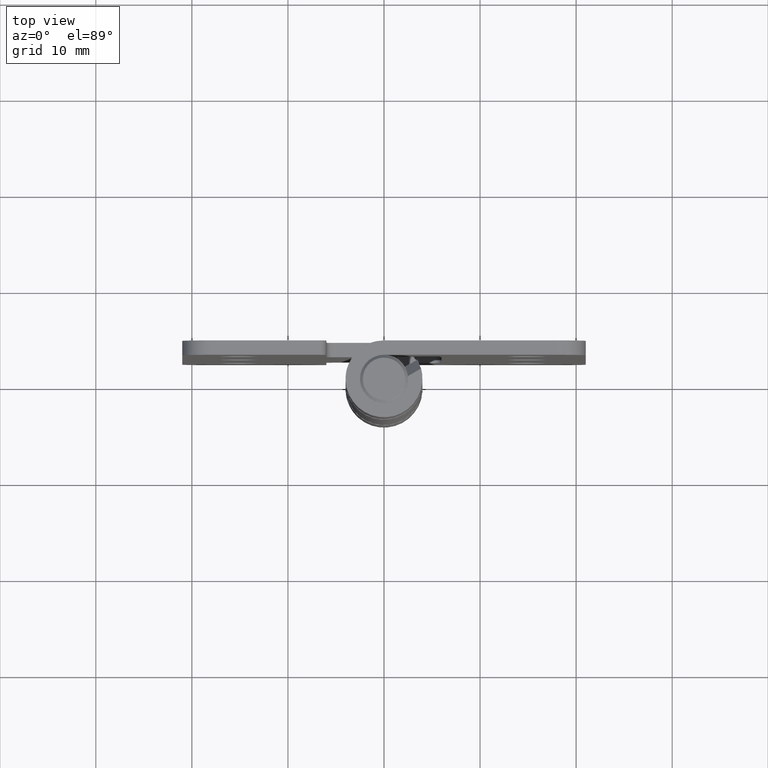
[diagram: clean part render]
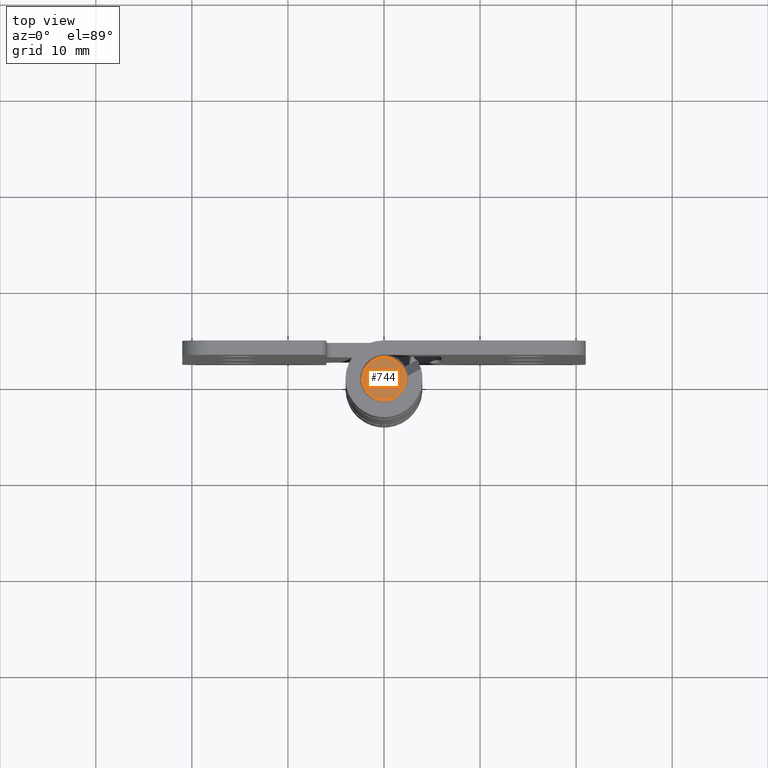
[diagram: same view with one face highlighted and labeled with its STEP entity id]
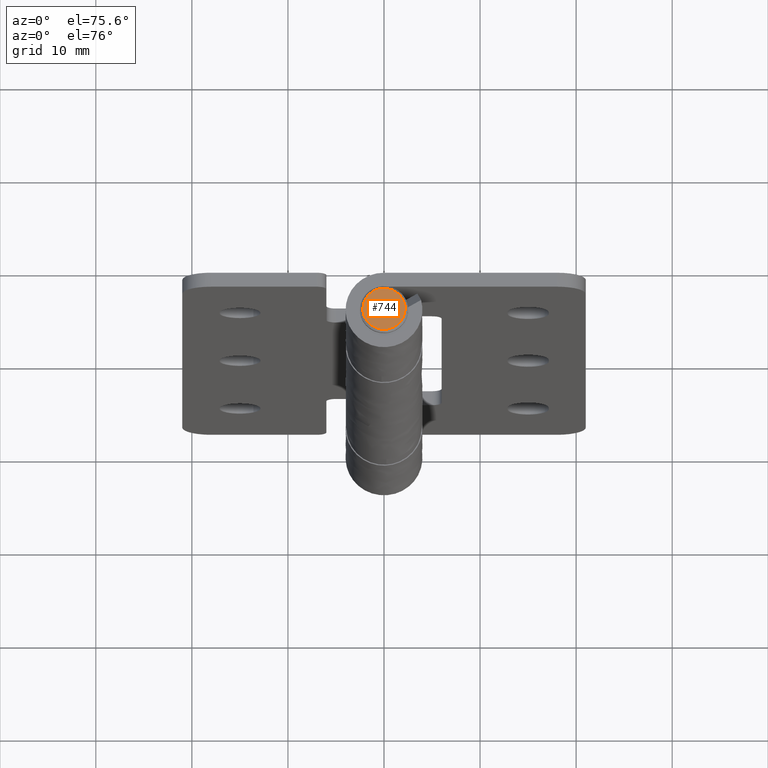
[diagram: same view with one face highlighted and labeled with its STEP entity id]
A machine part, top view. The second image highlights one B-rep face of the part: STEP entity #744.
A second angle (auxiliary view) of the same face is appended — the face is thin or edge-on in the first view.
In plain terms, the highlighted face is a freeform B-spline surface patch.
Its self-contained STEP definition (entity closure, byte-faithful):
#673=CARTESIAN_POINT('',(-2.419779991471578,-2.419725810775613,62.500000000000000));
#674=CARTESIAN_POINT('',(2.419780109489115,-2.419725810775613,62.500000000000000));
#675=CARTESIAN_POINT('',(-2.419779991471578,2.419725771436546,62.500000000000000));
#676=CARTESIAN_POINT('',(2.419780109489115,2.419725771436546,62.500000000000000));
#677=B_SPLINE_SURFACE_WITH_KNOTS('',1,1,((#673,#675),(#674,#676)),.UNSPECIFIED.,.F.,.F.,.U.,(2,2),(2,2),(0.0,4.839560100960694),(0.0,4.839451582212160),.UNSPECIFIED.);
#678=CARTESIAN_POINT('',(0.134306786978909,-2.195896556528088,62.499999999999737));
#679=VERTEX_POINT('',#678);
#680=CARTESIAN_POINT('',(-2.199999999999650,0.0,62.500000000000000));
#681=VERTEX_POINT('',#680);
#682=CARTESIAN_POINT('',(0.134306786978910,-2.195896556528088,62.499999999999744));
#683=CARTESIAN_POINT('',(0.067216079258104,-2.200000000000102,62.499999999999751));
#684=CARTESIAN_POINT('',(1.876325E-013,-2.200000000000097,62.499999999999751));
#685=CARTESIAN_POINT('',(-2.199999999999643,-2.199999999999954,62.499999999999879));
#686=CARTESIAN_POINT('',(-2.199999999999650,0.0,62.500000000000000));
#694=(BOUNDED_CURVE()B_SPLINE_CURVE(2,(#682,#683,#684,#685,#686),.UNSPECIFIED.,.F.,.U.)B_SPLINE_CURVE_WITH_KNOTS((3,2,3),(0.739332962241807,0.750000000000000,1.0),.UNSPECIFIED.)CURVE()GEOMETRIC_REPRESENTATION_ITEM()RATIONAL_B_SPLINE_CURVE((0.976072041672857,0.987502787903193,1.0,0.707106781186548,1.0))REPRESENTATION_ITEM(''));
#695=EDGE_CURVE('',#679,#681,#694,.T.);
#696=ORIENTED_EDGE('',*,*,#695,.F.);
#697=CARTESIAN_POINT('',(2.199999999999990,0.0,62.500000000000000));
#698=VERTEX_POINT('',#697);
#699=CARTESIAN_POINT('',(2.199999999999990,0.0,62.500000000000000));
#700=CARTESIAN_POINT('',(2.200000000000000,-2.069553347190570,62.499999999999865));
#701=CARTESIAN_POINT('',(0.134306786978910,-2.195896556528088,62.499999999999744));
#709=(BOUNDED_CURVE()B_SPLINE_CURVE(2,(#699,#700,#701),.UNSPECIFIED.,.F.,.U.)B_SPLINE_CURVE_WITH_KNOTS((3,3),(0.500000000000000,0.739332962241807),.UNSPECIFIED.)CURVE()GEOMETRIC_REPRESENTATION_ITEM()RATIONAL_B_SPLINE_CURVE((1.0,0.719603993283354,0.976072041672857))REPRESENTATION_ITEM(''));
#710=EDGE_CURVE('',#698,#679,#709,.T.);
#711=ORIENTED_EDGE('',*,*,#710,.F.);
#712=CARTESIAN_POINT('',(-0.134306786978569,2.195896556528088,62.499999999999751));
#713=VERTEX_POINT('',#712);
#714=CARTESIAN_POINT('',(-0.134306786978569,2.195896556528088,62.499999999999758));
#715=CARTESIAN_POINT('',(-0.067216079257763,2.200000000000102,62.499999999999766));
#716=CARTESIAN_POINT('',(1.536434E-013,2.200000000000097,62.499999999999773));
#717=CARTESIAN_POINT('',(2.199999999999982,2.199999999999955,62.499999999999879));
#718=CARTESIAN_POINT('',(2.199999999999990,0.0,62.500000000000000));
#726=(BOUNDED_CURVE()B_SPLINE_CURVE(2,(#714,#715,#716,#717,#718),.UNSPECIFIED.,.F.,.U.)B_SPLINE_CURVE_WITH_KNOTS((3,2,3),(0.239332962241807,0.250000000000000,0.500000000000000),.UNSPECIFIED.)CURVE()GEOMETRIC_REPRESENTATION_ITEM()RATIONAL_B_SPLINE_CURVE((0.976072041672857,0.987502787903193,1.0,0.707106781186548,1.0))REPRESENTATION_ITEM(''));
#727=EDGE_CURVE('',#713,#698,#726,.T.);
#728=ORIENTED_EDGE('',*,*,#727,.F.);
#729=CARTESIAN_POINT('',(-2.199999999999650,0.0,62.500000000000000));
#730=CARTESIAN_POINT('',(-2.199999999999658,2.069553347190570,62.499999999999872));
#731=CARTESIAN_POINT('',(-0.134306786978569,2.195896556528088,62.499999999999758));
#739=(BOUNDED_CURVE()B_SPLINE_CURVE(2,(#729,#730,#731),.UNSPECIFIED.,.F.,.U.)B_SPLINE_CURVE_WITH_KNOTS((3,3),(0.0,0.239332962241807),.UNSPECIFIED.)CURVE()GEOMETRIC_REPRESENTATION_ITEM()RATIONAL_B_SPLINE_CURVE((1.0,0.719603993283354,0.976072041672857))REPRESENTATION_ITEM(''));
#740=EDGE_CURVE('',#681,#713,#739,.T.);
#741=ORIENTED_EDGE('',*,*,#740,.F.);
#742=EDGE_LOOP('',(#696,#711,#728,#741));
#743=FACE_OUTER_BOUND('',#742,.T.);
#744=ADVANCED_FACE('',(#743),#677,.T.);